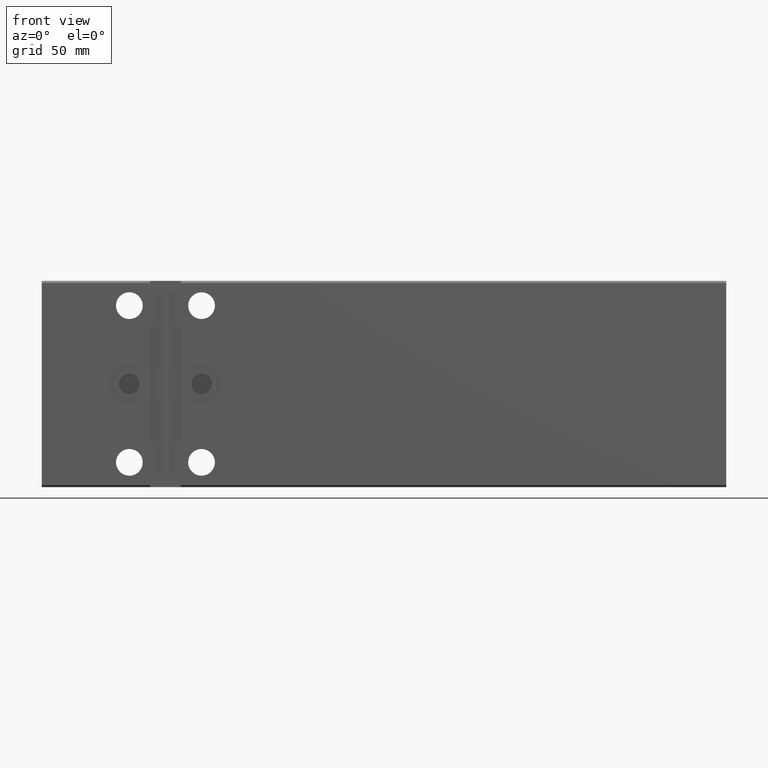
[diagram: clean part render]
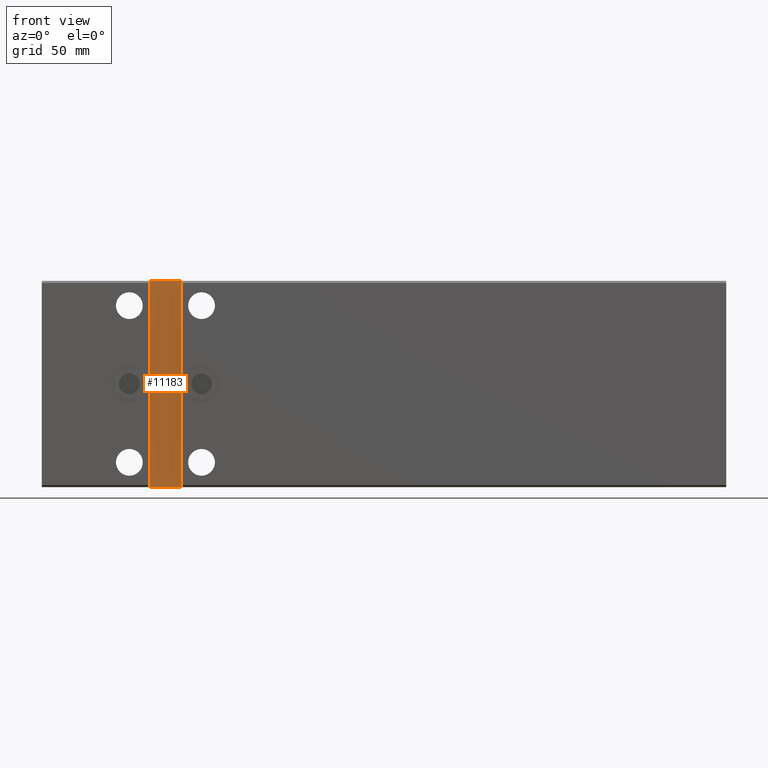
[diagram: same view with one face highlighted and labeled with its STEP entity id]
A machine part, front view. The second image highlights one B-rep face of the part: STEP entity #11183.
In plain terms, the highlighted planar face has unit normal (0, -1, 0).
Its self-contained STEP definition (entity closure, byte-faithful):
#262 = ORIENTED_EDGE ( 'NONE', *, *, #25050, .T. ) ;
#866 = VERTEX_POINT ( 'NONE', #23679 ) ;
#2959 = VECTOR ( 'NONE', #26419, 1000.000000000000000 ) ;
#4118 = LINE ( 'NONE', #17080, #2959 ) ;
#4726 = ORIENTED_EDGE ( 'NONE', *, *, #9416, .T. ) ;
#6378 = CARTESIAN_POINT ( 'NONE',  ( 52.49999999999999289, -35.50000000000001421, 49.99999999999998579 ) ) ;
#6969 = LINE ( 'NONE', #26278, #10974 ) ;
#7767 = CARTESIAN_POINT ( 'NONE',  ( 67.50000000000000000, -35.50000000000001421, 49.99999999999998579 ) ) ;
#8747 = CARTESIAN_POINT ( 'NONE',  ( 0.000000000000000000, -35.50000000000001421, 1.101411730778925047E-16 ) ) ;
#9128 = VECTOR ( 'NONE', #25717, 1000.000000000000000 ) ;
#9416 = EDGE_CURVE ( 'NONE', #15712, #29301, #4118, .T. ) ;
#10018 = CARTESIAN_POINT ( 'NONE',  ( 52.49999999999999289, -35.50000000000001421, 49.99999999999998579 ) ) ;
#10974 = VECTOR ( 'NONE', #39272, 1000.000000000000000 ) ;
#11183 = ADVANCED_FACE ( 'NONE', ( #30833 ), #27639, .T. ) ;
#11726 = DIRECTION ( 'NONE',  ( 0.000000000000000000, -0.000000000000000000, -1.000000000000000000 ) ) ;
#14475 = DIRECTION ( 'NONE',  ( 0.000000000000000000, -1.000000000000000000, 0.000000000000000000 ) ) ;
#15272 = EDGE_CURVE ( 'NONE', #29301, #24676, #39135, .T. ) ;
#15712 = VERTEX_POINT ( 'NONE', #37775 ) ;
#15906 = AXIS2_PLACEMENT_3D ( 'NONE', #8747, #14475, #11726 ) ;
#16307 = ORIENTED_EDGE ( 'NONE', *, *, #15272, .T. ) ;
#17080 = CARTESIAN_POINT ( 'NONE',  ( 67.50000000000000000, -35.50000000000001421, 49.99999999999998579 ) ) ;
#23679 = CARTESIAN_POINT ( 'NONE',  ( 52.50000000000000711, -35.50000000000001421, -50.00000000000000000 ) ) ;
#24676 = VERTEX_POINT ( 'NONE', #6378 ) ;
#25050 = EDGE_CURVE ( 'NONE', #866, #15712, #41088, .T. ) ;
#25717 = DIRECTION ( 'NONE',  ( -1.000000000000000000, -0.000000000000000000, -0.000000000000000000 ) ) ;
#26278 = CARTESIAN_POINT ( 'NONE',  ( 52.49999999999999289, -35.50000000000001421, 49.99999999999998579 ) ) ;
#26419 = DIRECTION ( 'NONE',  ( -1.387778780781445922E-16, -0.000000000000000000, 1.000000000000000000 ) ) ;
#27639 = PLANE ( 'NONE',  #15906 ) ;
#28840 = ORIENTED_EDGE ( 'NONE', *, *, #40882, .T. ) ;
#29301 = VERTEX_POINT ( 'NONE', #7767 ) ;
#30833 = FACE_OUTER_BOUND ( 'NONE', #38110, .T. ) ;
#37775 = CARTESIAN_POINT ( 'NONE',  ( 67.50000000000001421, -35.50000000000001421, -50.00000000000000000 ) ) ;
#38110 = EDGE_LOOP ( 'NONE', ( #4726, #16307, #28840, #262 ) ) ;
#38540 = DIRECTION ( 'NONE',  ( 1.000000000000000000, 0.000000000000000000, 0.000000000000000000 ) ) ;
#39135 = LINE ( 'NONE', #10018, #9128 ) ;
#39272 = DIRECTION ( 'NONE',  ( 1.387778780781445922E-16, 0.000000000000000000, -1.000000000000000000 ) ) ;
#40882 = EDGE_CURVE ( 'NONE', #24676, #866, #6969, .T. ) ;
#41088 = LINE ( 'NONE', #41514, #41310 ) ;
#41310 = VECTOR ( 'NONE', #38540, 1000.000000000000000 ) ;
#41514 = CARTESIAN_POINT ( 'NONE',  ( 52.50000000000000711, -35.50000000000001421, -50.00000000000000000 ) ) ;